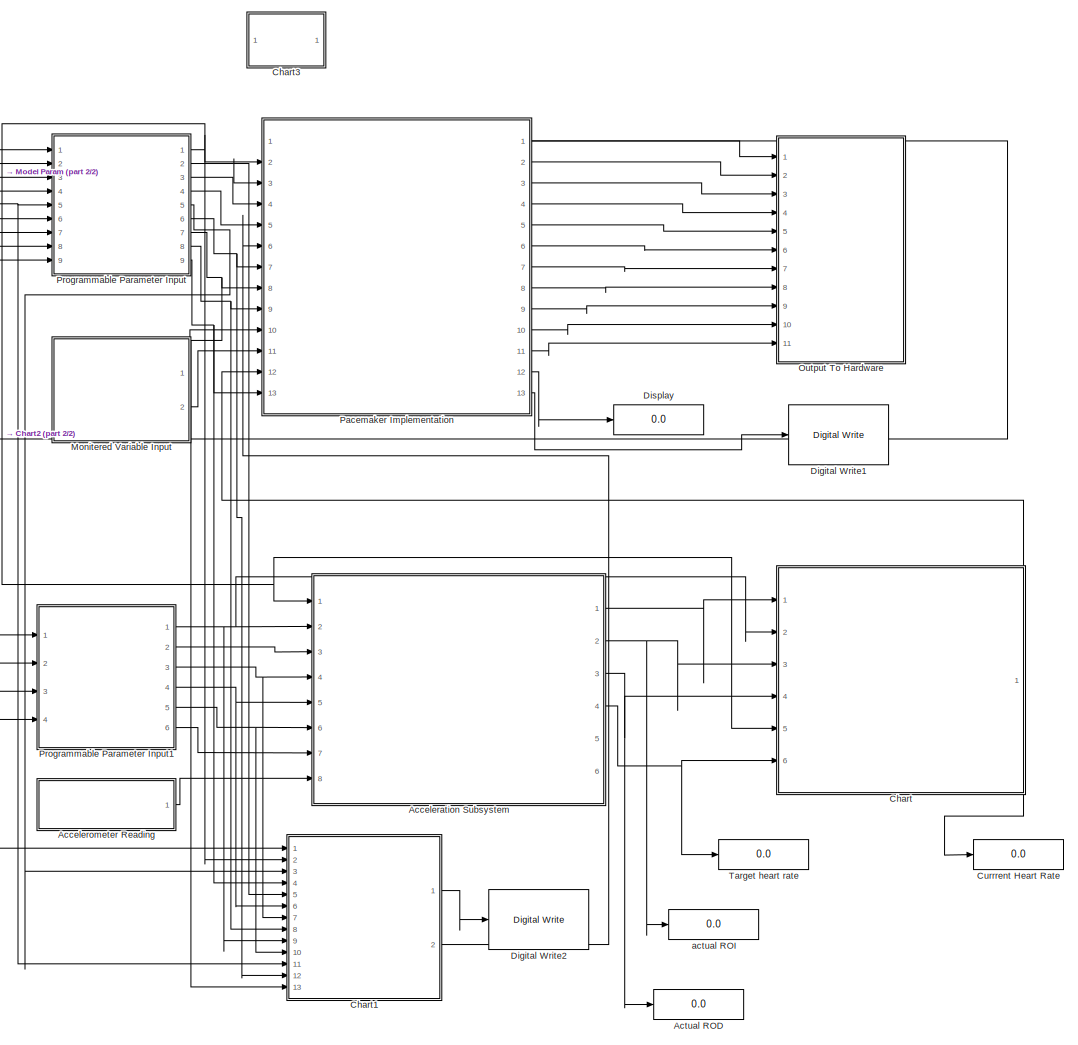
[diagram: root canvas - part 1/2, right side, full height]
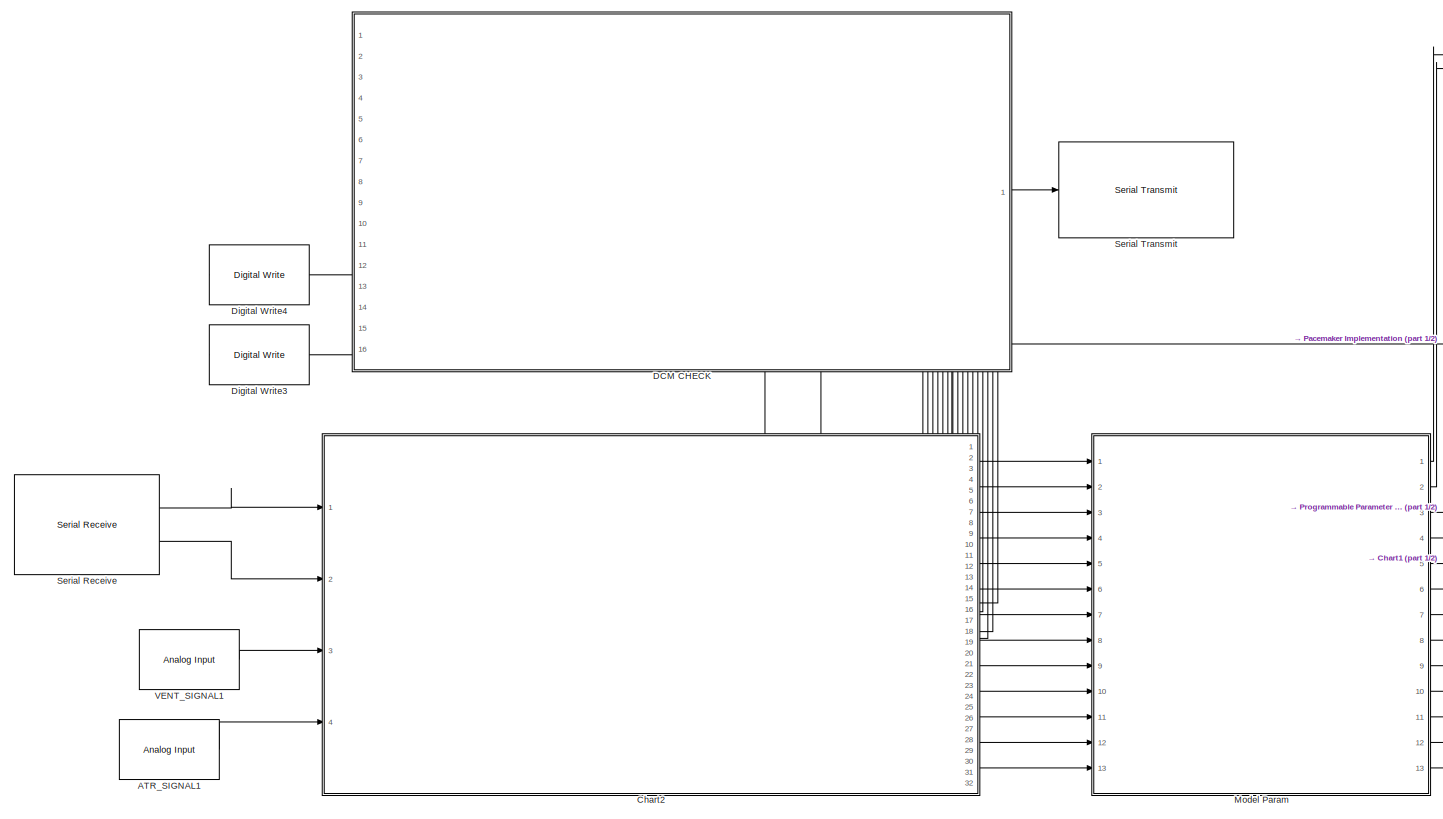
[diagram: root canvas - part 2/2, left side, full height]
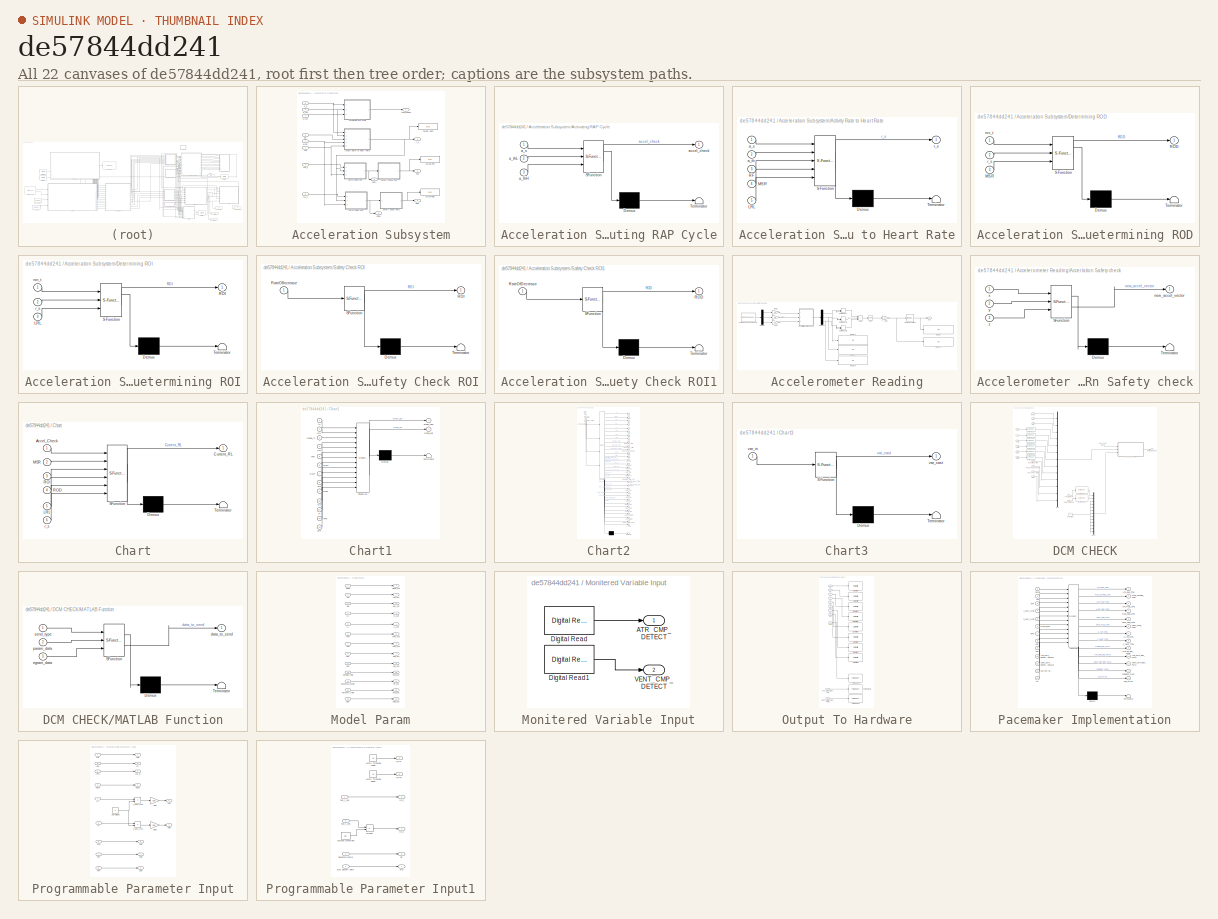
[diagram: thumbnail index - all 22 canvases of the model, root first then tree order]
MODEL slx_de57844dd241
KIND model
CONFIG AbsTol = auto
CONFIG EnableMultiTasking = on
CONFIG FixedStep = 1e-3
CONFIG MaxStep = auto
CONFIG MinStep = auto
CONFIG RelTol = 1e-3
CONFIG SampleTimeConstraint = Unconstrained
CONFIG SolverName = FixedStepDiscrete
CONFIG StartTime = 0.0
CONFIG StopTime = 50
WORKSPACE source: mxarray member
WORKSPACE DefaultDataStore = 60
BLOCK [Reference] ATR_SIGNAL1  REF=frdmk64flib/Analog Input
  Ports = [0, 1]
  SourceBlock = frdmk64flib/Analog Input
  SourceProductBaseCode = EC_FRDM_K64F
  SourceType = freedomk64f.AnalogInput
BLOCK [SubSystem] Acceleration Subsystem
  Ports = [8, 6]
  RequestExecContextInheritance = off
BLOCK [Outport] Acceleration Subsystem/Accel_Check
BLOCK [SubSystem] Acceleration Subsystem/Activating RAP Cycle
  ErrorFcn = Stateflow.Translate.translate
  PermitHierarchicalResolution = ExplicitOnly
  Ports = [3, 1]
  RequestExecContextInheritance = off
  SFBlockType = MATLAB Function
  TreatAsAtomicUnit = on
BLOCK [Demux] Acceleration Subsystem/Activating RAP Cycle/ Demux 
  Outputs = 1
  Ports = [1, 1]
BLOCK [S-Function] Acceleration Subsystem/Activating RAP Cycle/ SFunction 
  EnableBusSupport = on
  FunctionName = sf_sfun
  PortCounts = [3 2]
  Ports = [3, 2]
  SFcnIsStateOwnerBlock = off
  SFunctionDeploymentMode = off
  Tag = Stateflow S-Function 5
BLOCK [Terminator] Acceleration Subsystem/Activating RAP Cycle/ Terminator 
BLOCK [Inport] Acceleration Subsystem/Activating RAP Cycle/a_s
BLOCK [Inport] Acceleration Subsystem/Activating RAP Cycle/a_thH
  Port = 3
BLOCK [Inport] Acceleration Subsystem/Activating RAP Cycle/a_thL
  Port = 2
BLOCK [Outport] Acceleration Subsystem/Activating RAP Cycle/accel_check
BLOCK [SubSystem] Acceleration Subsystem/Activity Rate to Heart Rate
  ErrorFcn = Stateflow.Translate.translate
  PermitHierarchicalResolution = ExplicitOnly
  Ports = [5, 1]
  RequestExecContextInheritance = off
  SFBlockType = MATLAB Function
  TreatAsAtomicUnit = on
BLOCK [Demux] Acceleration Subsystem/Activity Rate to Heart Rate/ Demux 
  Outputs = 1
  Ports = [1, 1]
BLOCK [S-Function] Acceleration Subsystem/Activity Rate to Heart Rate/ SFunction 
  EnableBusSupport = on
  FunctionName = sf_sfun
  PortCounts = [5 2]
  Ports = [5, 2]
  SFcnIsStateOwnerBlock = off
  SFunctionDeploymentMode = off
  Tag = Stateflow S-Function 2
BLOCK [Terminator] Acceleration Subsystem/Activity Rate to Heart Rate/ Terminator 
BLOCK [Inport] Acceleration Subsystem/Activity Rate to Heart Rate/LRL
  Port = 5
BLOCK [Inport] Acceleration Subsystem/Activity Rate to Heart Rate/MSR
  Port = 4
BLOCK [Inport] Acceleration Subsystem/Activity Rate to Heart Rate/RF
  Port = 3
BLOCK [Inport] Acceleration Subsystem/Activity Rate to Heart Rate/a_s
BLOCK [Inport] Acceleration Subsystem/Activity Rate to Heart Rate/a_th
  Port = 2
BLOCK [Outport] Acceleration Subsystem/Activity Rate to Heart Rate/r_s
BLOCK [Display] Acceleration Subsystem/Actual ROD
  Decimation = 1
  Ports = [1]
BLOCK [SubSystem] Acceleration Subsystem/Determining ROD
  ErrorFcn = Stateflow.Translate.translate
  PermitHierarchicalResolution = ExplicitOnly
  Ports = [3, 1]
  RequestExecContextInheritance = off
  SFBlockType = MATLAB Function
  TreatAsAtomicUnit = on
BLOCK [Demux] Acceleration Subsystem/Determining ROD/ Demux 
  Outputs = 1
  Ports = [1, 1]
BLOCK [S-Function] Acceleration Subsystem/Determining ROD/ SFunction 
  EnableBusSupport = on
  FunctionName = sf_sfun
  PortCounts = [3 2]
  Ports = [3, 2]
  SFcnIsStateOwnerBlock = off
  SFunctionDeploymentMode = off
  Tag = Stateflow S-Function 4
BLOCK [Terminator] Acceleration Subsystem/Determining ROD/ Terminator 
BLOCK [Inport] Acceleration Subsystem/Determining ROD/MSR
  Port = 3
BLOCK [Outport] Acceleration Subsystem/Determining ROD/ROD
BLOCK [Inport] Acceleration Subsystem/Determining ROD/r_s
  Port = 2
BLOCK [Inport] Acceleration Subsystem/Determining ROD/rcv_t
BLOCK [SubSystem] Acceleration Subsystem/Determining ROI
  ErrorFcn = Stateflow.Translate.translate
  PermitHierarchicalResolution = ExplicitOnly
  Ports = [3, 1]
  RequestExecContextInheritance = off
  SFBlockType = MATLAB Function
  TreatAsAtomicUnit = on
BLOCK [Demux] Acceleration Subsystem/Determining ROI/ Demux 
  Outputs = 1
  Ports = [1, 1]
BLOCK [S-Function] Acceleration Subsystem/Determining ROI/ SFunction 
  EnableBusSupport = on
  FunctionName = sf_sfun
  PortCounts = [3 2]
  Ports = [3, 2]
  SFcnIsStateOwnerBlock = off
  SFunctionDeploymentMode = off
  Tag = Stateflow S-Function 1
BLOCK [Terminator] Acceleration Subsystem/Determining ROI/ Terminator 
BLOCK [Inport] Acceleration Subsystem/Determining ROI/LRL
  Port = 3
BLOCK [Outport] Acceleration Subsystem/Determining ROI/ROI
BLOCK [Inport] Acceleration Subsystem/Determining ROI/r_s
  Port = 2
BLOCK [Inport] Acceleration Subsystem/Determining ROI/rxn_t
BLOCK [Inport] Acceleration Subsystem/LRL
BLOCK [Inport] Acceleration Subsystem/MSR
  Port = 2
BLOCK [Inport] Acceleration Subsystem/RF
  Port = 6
BLOCK [Outport] Acceleration Subsystem/ROD
  Port = 3
BLOCK [Outport] Acceleration Subsystem/ROD1
  Port = 6
BLOCK [Outport] Acceleration Subsystem/ROI
  Port = 2
BLOCK [Outport] Acceleration Subsystem/ROI1
  Port = 5
BLOCK [SubSystem] Acceleration Subsystem/Safety Check ROI
  ErrorFcn = Stateflow.Translate.translate
  PermitHierarchicalResolution = ExplicitOnly
  Ports = [1, 1]
  RequestExecContextInheritance = off
  SFBlockType = MATLAB Function
  TreatAsAtomicUnit = on
BLOCK [Demux] Acceleration Subsystem/Safety Check ROI/ Demux 
  Outputs = 1
  Ports = [1, 1]
BLOCK [S-Function] Acceleration Subsystem/Safety Check ROI/ SFunction 
  EnableBusSupport = on
  FunctionName = sf_sfun
  PortCounts = [1 2]
  Ports = [1, 2]
  SFcnIsStateOwnerBlock = off
  SFunctionDeploymentMode = off
  Tag = Stateflow S-Function 8
BLOCK [Terminator] Acceleration Subsystem/Safety Check ROI/ Terminator 
BLOCK [Outport] Acceleration Subsystem/Safety Check ROI/ROI
BLOCK [Inport] Acceleration Subsystem/Safety Check ROI/RateOfIncrease
BLOCK [SubSystem] Acceleration Subsystem/Safety Check ROI1
  ErrorFcn = Stateflow.Translate.translate
  PermitHierarchicalResolution = ExplicitOnly
  Ports = [1, 1]
  RequestExecContextInheritance = off
  SFBlockType = MATLAB Function
  TreatAsAtomicUnit = on
BLOCK [Demux] Acceleration Subsystem/Safety Check ROI1/ Demux 
  Outputs = 1
  Ports = [1, 1]
BLOCK [S-Function] Acceleration Subsystem/Safety Check ROI1/ SFunction 
  EnableBusSupport = on
  FunctionName = sf_sfun
  PortCounts = [1 2]
  Ports = [1, 2]
  SFcnIsStateOwnerBlock = off
  SFunctionDeploymentMode = off
  Tag = Stateflow S-Function 7
BLOCK [Terminator] Acceleration Subsystem/Safety Check ROI1/ Terminator 
BLOCK [Outport] Acceleration Subsystem/Safety Check ROI1/ROD
BLOCK [Inport] Acceleration Subsystem/Safety Check ROI1/RateOfDecrease
BLOCK [Display] Acceleration Subsystem/Target bpm
  Decimation = 1
  Ports = [1]
BLOCK [Inport] Acceleration Subsystem/a_s
  Port = 8
BLOCK [Inport] Acceleration Subsystem/a_thH
  Port = 7
BLOCK [Inport] Acceleration Subsystem/a_thL
  Port = 3
BLOCK [Display] Acceleration Subsystem/actual ROI
  Decimation = 1
  Ports = [1]
BLOCK [Outport] Acceleration Subsystem/r_s
  Port = 4
BLOCK [Inport] Acceleration Subsystem/rcv_t
  Port = 5
BLOCK [Inport] Acceleration Subsystem/rxn_t
  Port = 4
BLOCK [SubSystem] Accelerometer Reading
  Ports = [0, 1]
  RequestExecContextInheritance = off
BLOCK [SubSystem] Accelerometer Reading/Accerlation Safety check
  ErrorFcn = Stateflow.Translate.translate
  PermitHierarchicalResolution = ExplicitOnly
  Ports = [3, 1]
  RequestExecContextInheritance = off
  SFBlockType = MATLAB Function
  TreatAsAtomicUnit = on
BLOCK [Demux] Accelerometer Reading/Accerlation Safety check/ Demux 
  Outputs = 1
  Ports = [1, 1]
BLOCK [S-Function] Accelerometer Reading/Accerlation Safety check/ SFunction 
  EnableBusSupport = on
  FunctionName = sf_sfun
  PortCounts = [3 2]
  Ports = [3, 2]
  SFcnIsStateOwnerBlock = off
  SFunctionDeploymentMode = off
  Tag = Stateflow S-Function 12
BLOCK [Terminator] Accelerometer Reading/Accerlation Safety check/ Terminator 
BLOCK [Outport] Accelerometer Reading/Accerlation Safety check/new_accel_vector
BLOCK [Inport] Accelerometer Reading/Accerlation Safety check/x
BLOCK [Inport] Accelerometer Reading/Accerlation Safety check/y
  Port = 2
BLOCK [Inport] Accelerometer Reading/Accerlation Safety check/z
  Port = 3
BLOCK [Sum] Accelerometer Reading/Add
  IconShape = rectangular
  Inputs = +++
  Ports = [3, 1]
BLOCK [Demux] Accelerometer Reading/Demux
  Outputs = 3
  Ports = [1, 3]
BLOCK [Demux] Accelerometer Reading/Demux1
  Outputs = 3
  Ports = [1, 3]
BLOCK [Display] Accelerometer Reading/Display
  Decimation = 1
  Ports = [1]
BLOCK [Display] Accelerometer Reading/Display2
  Decimation = 1
  Ports = [1]
BLOCK [Display] Accelerometer Reading/Display3
  Decimation = 1
  Ports = [1]
BLOCK [Display] Accelerometer Reading/Display4
  Decimation = 1
  Ports = [1]
BLOCK [Display] Accelerometer Reading/Display5
  Decimation = 1
  Ports = [1]
BLOCK [DotProduct] Accelerometer Reading/Dot Product
  OutDataTypeStr = Inherit: Inherit via internal rule
BLOCK [DotProduct] Accelerometer Reading/Dot Product1
  OutDataTypeStr = Inherit: Inherit via internal rule
BLOCK [DotProduct] Accelerometer Reading/Dot Product2
  OutDataTypeStr = Inherit: Inherit via internal rule
BLOCK [Reference] Accelerometer Reading/FXOS8700 6-Axes Sensor  REF=frdmk64flib/FXOS8700 6-Axes Sensor
  Ports = [0, 1]
  SourceBlock = frdmk64flib/FXOS8700 6-Axes Sensor
  SourceProductBaseCode = EC_FRDM_K64F
  SourceType = freedomk64f.fxos8700
BLOCK [Gain] Accelerometer Reading/Gain
  Gain = 5
BLOCK [Gain] Accelerometer Reading/Gain1
  Gain = 10
BLOCK [Gain] Accelerometer Reading/Gain2
  Gain = 10
BLOCK [Gain] Accelerometer Reading/Gain3
BLOCK [Reference] Accelerometer Reading/Moving Average  REF=dspstat3/Moving
Average
  Ports = [1, 1]
  SourceBlock = dspstat3/Moving\nAverage
  SourceProductBaseCode = DS
  SourceType = dsp.simulink.MovingAverage
BLOCK [Sqrt] Accelerometer Reading/Sqrt
BLOCK [Outport] Accelerometer Reading/a_s
BLOCK [Display] Actual ROD
  Decimation = 1
  Ports = [1]
BLOCK [SubSystem] Chart
  ErrorFcn = Stateflow.Translate.translate
  PermitHierarchicalResolution = ExplicitOnly
  PortSchema = {"entries":[{"content":{"sides":[{"content":{"connectorIds":["In5","In2","In1","In3","In4","In6"]},"type":"ConnectorPlacement.EquallySpacedRectSide","uuid":"e2faaf11-533e-4519-93e0-9386f0696ab0"},{"content":{"connectorIds":["Out1"],"side":"RIGHT"},"type":"ConnectorPlacement.EquallySpacedRectSide","uuid":"3d822896-3a5e-473f-9176-095876908580"},{"content":{"connectorIds":[],"side":"TOP"},"type":"Con...<+270ch>
  Ports = [6, 1]
  RequestExecContextInheritance = off
  SFBlockType = Chart
  TreatAsAtomicUnit = on
BLOCK [Demux] Chart/ Demux 
  Outputs = 1
  Ports = [1, 1]
BLOCK [S-Function] Chart/ SFunction 
  EnableBusSupport = on
  FunctionName = sf_sfun
  PortCounts = [6 2]
  Ports = [6, 2]
  SFcnIsStateOwnerBlock = off
  SFunctionDeploymentMode = off
  Tag = Stateflow S-Function 6
BLOCK [Terminator] Chart/ Terminator 
BLOCK [Inport] Chart/Accel_Check
BLOCK [Outport] Chart/Current_RL
BLOCK [Inport] Chart/LRL
  Port = 5
BLOCK [Inport] Chart/MSR
  Port = 2
BLOCK [Inport] Chart/ROD
  Port = 4
BLOCK [Inport] Chart/ROI
  Port = 3
BLOCK [Inport] Chart/r_s
  Port = 6
BLOCK [SubSystem] Chart1
  ErrorFcn = Stateflow.Translate.translate
  PermitHierarchicalResolution = ExplicitOnly
  PortSchema = {"entries":[{"content":{"sides":[{"content":{"connectorIds":["In2","In4","In1","In5","In7","In6","In8","In10","In9","In11","In13","In3","In12"]},"type":"ConnectorPlacement.EquallySpacedRectSide","uuid":"456a7d9e-f2dc-4248-8632-54977d3d0e8d"},{"content":{"connectorIds":["Out1","Out2"],"side":"RIGHT"},"type":"ConnectorPlacement.EquallySpacedRectSide","uuid":"93618940-8d2c-4873-bbdd-898375b2771e"},{"...<+323ch>
  Ports = [13, 2]
  RequestExecContextInheritance = off
  SFBlockType = Chart
  TreatAsAtomicUnit = on
BLOCK [Demux] Chart1/ Demux 
  Outputs = 1
  Ports = [1, 1]
BLOCK [S-Function] Chart1/ SFunction 
  EnableBusSupport = on
  FunctionName = sf_sfun
  PortCounts = [13 3]
  Ports = [13, 3]
  SFcnIsStateOwnerBlock = off
  SFunctionDeploymentMode = off
  Tag = Stateflow S-Function 9
BLOCK [Terminator] Chart1/ Terminator 
BLOCK [Inport] Chart1/AA
BLOCK [Inport] Chart1/APW
  Port = 5
BLOCK [Inport] Chart1/ARP
  Port = 8
BLOCK [Inport] Chart1/LRL
  Port = 2
BLOCK [Inport] Chart1/MSR
  Port = 9
BLOCK [Inport] Chart1/RF
  Port = 10
BLOCK [Inport] Chart1/RecT
  Port = 6
BLOCK [Inport] Chart1/RxnT
  Port = 7
BLOCK [Inport] Chart1/URL
  Port = 4
BLOCK [Inport] Chart1/VA
  Port = 11
BLOCK [Inport] Chart1/VPW
  Port = 12
BLOCK [Inport] Chart1/VRP
  Port = 13
BLOCK [Outport] Chart1/green_LED
BLOCK [Inport] Chart1/mode_in
  Port = 3
BLOCK [Outport] Chart1/mode_out
  Port = 2
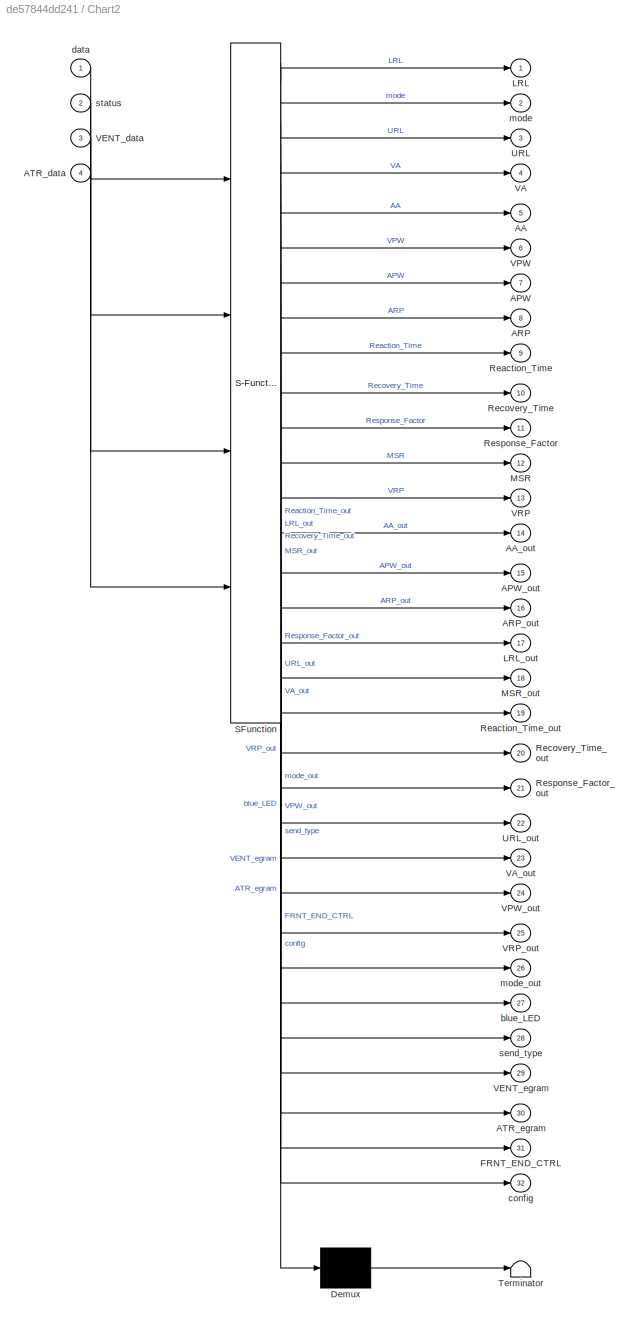
BLOCK [SubSystem] Chart2
  ErrorFcn = Stateflow.Translate.translate
  PermitHierarchicalResolution = ExplicitOnly
  PortSchema = {"entries":[{"content":{"sides":[{"content":{"connectorIds":["In1","In2","In3","In4"]},"type":"ConnectorPlacement.EquallySpacedRectSide","uuid":"e0d71676-4635-4cc5-940f-d91659ea50ca"},{"content":{"connectorIds":["Out2","Out1","Out3","Out4","Out5","Out6","Out7","Out13","Out8","Out9","Out10","Out11","Out12"],"side":"RIGHT"},"type":"ConnectorPlacement.EquallySpacedRectSide","uuid":"0805dafd-7d20-457a...<+641ch>
  Ports = [4, 32]
  RequestExecContextInheritance = off
  SFBlockType = Chart
  TreatAsAtomicUnit = on
BLOCK [Demux] Chart2/ Demux 
  Outputs = 1
  Ports = [1, 1]
BLOCK [S-Function] Chart2/ SFunction 
  EnableBusSupport = on
  FunctionName = sf_sfun
  PortCounts = [4 33]
  Ports = [4, 33]
  SFcnIsStateOwnerBlock = off
  SFunctionDeploymentMode = off
  Tag = Stateflow S-Function 10
BLOCK [Terminator] Chart2/ Terminator 
BLOCK [Outport] Chart2/AA
  Port = 5
BLOCK [Outport] Chart2/AA_out
  Port = 14
BLOCK [Outport] Chart2/APW
  Port = 7
BLOCK [Outport] Chart2/APW_out
  Port = 15
BLOCK [Outport] Chart2/ARP
  Port = 8
BLOCK [Outport] Chart2/ARP_out
  Port = 16
BLOCK [Inport] Chart2/ATR_data
  Port = 4
BLOCK [Outport] Chart2/ATR_egram
  Port = 30
BLOCK [Outport] Chart2/FRNT_END_CTRL
  Port = 31
BLOCK [Outport] Chart2/LRL
BLOCK [Outport] Chart2/LRL_out
  Port = 17
BLOCK [Outport] Chart2/MSR
  Port = 12
BLOCK [Outport] Chart2/MSR_out
  Port = 18
BLOCK [Outport] Chart2/Reaction_Time
  Port = 9
BLOCK [Outport] Chart2/Reaction_Time_out
  Port = 19
BLOCK [Outport] Chart2/Recovery_Time
  Port = 10
BLOCK [Outport] Chart2/Recovery_Time_out
  Port = 20
BLOCK [Outport] Chart2/Response_Factor
  Port = 11
BLOCK [Outport] Chart2/Response_Factor_out
  Port = 21
BLOCK [Outport] Chart2/URL
  Port = 3
BLOCK [Outport] Chart2/URL_out
  Port = 22
BLOCK [Outport] Chart2/VA
  Port = 4
BLOCK [Outport] Chart2/VA_out
  Port = 23
BLOCK [Inport] Chart2/VENT_data
  Port = 3
BLOCK [Outport] Chart2/VENT_egram
  Port = 29
BLOCK [Outport] Chart2/VPW
  Port = 6
BLOCK [Outport] Chart2/VPW_out
  Port = 24
BLOCK [Outport] Chart2/VRP
  Port = 13
BLOCK [Outport] Chart2/VRP_out
  Port = 25
BLOCK [Outport] Chart2/blue_LED
  Port = 27
BLOCK [Outport] Chart2/config
  Port = 32
BLOCK [Inport] Chart2/data
BLOCK [Outport] Chart2/mode
  Port = 2
BLOCK [Outport] Chart2/mode_out
  Port = 26
BLOCK [Outport] Chart2/send_type
  Port = 28
BLOCK [Inport] Chart2/status
  Port = 2
BLOCK [SubSystem] Chart3
  Commented = on
  ErrorFcn = Stateflow.Translate.translate
  PermitHierarchicalResolution = ExplicitOnly
  Ports = [1, 1]
  RequestExecContextInheritance = off
  SFBlockType = Chart
  TreatAsAtomicUnit = on
BLOCK [Demux] Chart3/ Demux 
  Outputs = 1
  Ports = [1, 1]
BLOCK [S-Function] Chart3/ SFunction 
  EnableBusSupport = on
  FunctionName = sf_sfun
  PortCounts = [1 2]
  Ports = [1, 2]
  SFcnIsStateOwnerBlock = off
  SFunctionDeploymentMode = off
  Tag = Stateflow S-Function 11
BLOCK [Terminator] Chart3/ Terminator 
BLOCK [Outport] Chart3/var_cast
BLOCK [Inport] Chart3/var_in
BLOCK [Display] Currrent Heart Rate
  Decimation = 1
  Ports = [1]
BLOCK [SubSystem] DCM CHECK
  PortSchema = {"entries":[{"content":{"sides":[{"content":{"connectorIds":[]},"type":"ConnectorPlacement.EquallySpacedRectSide","uuid":"5070fca3-03db-4702-bf74-10cd169506b7"},{"content":{"connectorIds":["Out1"],"side":"RIGHT"},"type":"ConnectorPlacement.EquallySpacedRectSide","uuid":"a99172cf-9b5d-4dae-9e4a-5601bc613afa"},{"content":{"connectorIds":[],"side":"TOP"},"type":"ConnectorPlacement.EquallySpacedRectSi...<+481ch>
  Ports = [16, 1]
  RequestExecContextInheritance = off
BLOCK [Inport] DCM CHECK/AA
  OutDataTypeStr = single
  Port = 8
BLOCK [Inport] DCM CHECK/APW
  OutDataTypeStr = single
  Port = 10
BLOCK [Inport] DCM CHECK/ARP
  OutDataTypeStr = uint16
  Port = 12
BLOCK [Inport] DCM CHECK/ATR_EGRAM
  OutDataTypeStr = double
  Port = 3
BLOCK [Reference] DCM CHECK/Byte Pack  REF=etargetslib/Byte Pack
  Ports = [1, 1]
  SourceBlock = etargetslib/Byte Pack
  SourceProductBaseCode = ME
  SourceType = Byte pack
BLOCK [Reference] DCM CHECK/Byte Pack1  REF=etargetslib/Byte Pack
  Ports = [1, 1]
  SourceBlock = etargetslib/Byte Pack
  SourceProductBaseCode = ME
  SourceType = Byte pack
BLOCK [Reference] DCM CHECK/Byte Pack2  REF=etargetslib/Byte Pack
  Ports = [1, 1]
  SourceBlock = etargetslib/Byte Pack
  SourceProductBaseCode = ME
  SourceType = Byte pack
BLOCK [Reference] DCM CHECK/Byte Pack3  REF=etargetslib/Byte Pack
  Ports = [1, 1]
  SourceBlock = etargetslib/Byte Pack
  SourceProductBaseCode = ME
  SourceType = Byte pack
BLOCK [Reference] DCM CHECK/Byte Pack4  REF=etargetslib/Byte Pack
  Ports = [1, 1]
  SourceBlock = etargetslib/Byte Pack
  SourceProductBaseCode = ME
  SourceType = Byte pack
BLOCK [Reference] DCM CHECK/Byte Pack5  REF=etargetslib/Byte Pack
  Ports = [1, 1]
  SourceBlock = etargetslib/Byte Pack
  SourceProductBaseCode = ME
  SourceType = Byte pack
BLOCK [Reference] DCM CHECK/Byte Pack8  REF=etargetslib/Byte Pack
  Ports = [1, 1]
  SourceBlock = etargetslib/Byte Pack
  SourceProductBaseCode = ME
  SourceType = Byte pack
BLOCK [Reference] DCM CHECK/Byte Pack9  REF=etargetslib/Byte Pack
  Ports = [1, 1]
  SourceBlock = etargetslib/Byte Pack
  SourceProductBaseCode = ME
  SourceType = Byte pack
BLOCK [Constant] DCM CHECK/Constant
  OutDataTypeStr = uint8
  Value = 0
BLOCK [Inport] DCM CHECK/LRL
  OutDataTypeStr = uint8
  Port = 5
BLOCK [SubSystem] DCM CHECK/MATLAB Function
  ErrorFcn = Stateflow.Translate.translate
  PermitHierarchicalResolution = ExplicitOnly
  Ports = [3, 1]
  RequestExecContextInheritance = off
  SFBlockType = MATLAB Function
  TreatAsAtomicUnit = on
BLOCK [Demux] DCM CHECK/MATLAB Function/ Demux 
  Outputs = 1
  Ports = [1, 1]
BLOCK [S-Function] DCM CHECK/MATLAB Function/ SFunction 
  EnableBusSupport = on
  FunctionName = sf_sfun
  PortCounts = [3 2]
  Ports = [3, 2]
  SFcnIsStateOwnerBlock = off
  SFunctionDeploymentMode = off
  Tag = Stateflow S-Function 13
BLOCK [Terminator] DCM CHECK/MATLAB Function/ Terminator 
BLOCK [Outport] DCM CHECK/MATLAB Function/data_to_send
BLOCK [Inport] DCM CHECK/MATLAB Function/egram_data
  Port = 3
BLOCK [Inport] DCM CHECK/MATLAB Function/param_data
  Port = 2
BLOCK [Inport] DCM CHECK/MATLAB Function/send_type
BLOCK [Inport] DCM CHECK/MSR
  OutDataTypeStr = uint8
  Port = 16
BLOCK [Mux] DCM CHECK/Mux
  DisplayOption = bar
  Inputs = 13
  Ports = [13, 1]
BLOCK [Mux] DCM CHECK/Mux1
  DisplayOption = bar
  Inputs = 13
  Ports = [13, 1]
BLOCK [Inport] DCM CHECK/Reaction_Time
  OutDataTypeStr = uint8
  Port = 13
BLOCK [Inport] DCM CHECK/Recovery_Time
  OutDataTypeStr = uint8
  Port = 15
BLOCK [Inport] DCM CHECK/Response_Factor
  OutDataTypeStr = uint8
  Port = 14
BLOCK [Inport] DCM CHECK/URL
  OutDataTypeStr = uint8
  Port = 6
BLOCK [Inport] DCM CHECK/VA
  OutDataTypeStr = single
  Port = 7
BLOCK [Inport] DCM CHECK/VENT_EGRAM
  OutDataTypeStr = double
  Port = 2
BLOCK [Inport] DCM CHECK/VPW
  OutDataTypeStr = single
  Port = 9
BLOCK [Inport] DCM CHECK/VRP
  OutDataTypeStr = uint16
  Port = 11
BLOCK [Outport] DCM CHECK/data_to_send
BLOCK [Inport] DCM CHECK/mode
  OutDataTypeStr = uint8
  Port = 4
BLOCK [Inport] DCM CHECK/send_type
BLOCK [Reference] Digital Write1  REF=frdmk64flib/Digital Write
  Ports = [1]
  SourceBlock = frdmk64flib/Digital Write
  SourceProductBaseCode = EC_FRDM_K64F
  SourceType = freedomk64f.DigitalWrite
BLOCK [Reference] Digital Write2  REF=frdmk64flib/Digital Write
  Ports = [1]
  SourceBlock = frdmk64flib/Digital Write
  SourceProductBaseCode = EC_FRDM_K64F
  SourceType = freedomk64f.DigitalWrite
BLOCK [Reference] Digital Write3  REF=frdmk64flib/Digital Write
  Ports = [1]
  SourceBlock = frdmk64flib/Digital Write
  SourceProductBaseCode = EC_FRDM_K64F
  SourceType = freedomk64f.DigitalWrite
BLOCK [Reference] Digital Write4  REF=frdmk64flib/Digital Write
  Ports = [1]
  SourceBlock = frdmk64flib/Digital Write
  SourceProductBaseCode = EC_FRDM_K64F
  SourceType = freedomk64f.DigitalWrite
BLOCK [Display] Display
  Decimation = 1
  Ports = [1]
BLOCK [SubSystem] Model Param
  Ports = [13, 13]
  RequestExecContextInheritance = off
BLOCK [Inport] Model Param/AA
  Port = 5
BLOCK [Outport] Model Param/AA_out
  Port = 4
BLOCK [Inport] Model Param/APW
  Port = 7
BLOCK [Outport] Model Param/APW_out
  Port = 2
BLOCK [Inport] Model Param/ARP
  Port = 9
BLOCK [Outport] Model Param/ARP_out
  Port = 8
BLOCK [Inport] Model Param/LRL
  Port = 2
BLOCK [Outport] Model Param/LRL_out
BLOCK [Inport] Model Param/MSR
  Port = 13
BLOCK [Outport] Model Param/MSR_out
  Port = 13
BLOCK [Outport] Model Param/RF_out
  Port = 12
BLOCK [Outport] Model Param/Rcvt_out
  Port = 11
BLOCK [Inport] Model Param/Reaction_Time
  Port = 10
BLOCK [Inport] Model Param/Recovery_Time
  Port = 11
BLOCK [Inport] Model Param/Response_Factor
  Port = 12
BLOCK [Outport] Model Param/Rxnt_out
  Port = 10
BLOCK [Inport] Model Param/URL
  Port = 3
BLOCK [Outport] Model Param/URL_out
  Port = 9
BLOCK [Inport] Model Param/VA
  Port = 4
BLOCK [Outport] Model Param/VA_out
  Port = 5
BLOCK [Inport] Model Param/VPW
  Port = 6
BLOCK [Outport] Model Param/VPW_out
  Port = 6
BLOCK [Inport] Model Param/VRP
  Port = 8
BLOCK [Outport] Model Param/VRP_out
  Port = 7
BLOCK [Inport] Model Param/mode
BLOCK [Outport] Model Param/mode_out
  Port = 3
BLOCK [SubSystem] Monitered Variable Input
  Ports = [0, 2]
  RequestExecContextInheritance = off
BLOCK [Outport] Monitered Variable Input/ATR_CMP_DETECT
  OutDataTypeStr = boolean
BLOCK [Reference] Monitered Variable Input/Digital Read  REF=frdmk64flib/Digital Read
  Ports = [0, 1]
  SourceBlock = frdmk64flib/Digital Read
  SourceProductBaseCode = EC_FRDM_K64F
  SourceType = freedomk64f.DigitalRead
BLOCK [Reference] Monitered Variable Input/Digital Read1  REF=frdmk64flib/Digital Read
  Ports = [0, 1]
  SourceBlock = frdmk64flib/Digital Read
  SourceProductBaseCode = EC_FRDM_K64F
  SourceType = freedomk64f.DigitalRead
BLOCK [Outport] Monitered Variable Input/VENT_CMP_DETECT
  OutDataTypeStr = boolean
  Port = 2
BLOCK [SubSystem] Output To Hardware
  Ports = [11]
  RequestExecContextInheritance = off
BLOCK [Inport] Output To Hardware/ATR_CMP_REF_PWM
  Port = 10
BLOCK [Reference] Output To Hardware/Digital Write  REF=frdmk64flib/Digital Write
  Ports = [1]
  SourceBlock = frdmk64flib/Digital Write
  SourceProductBaseCode = EC_FRDM_K64F
  SourceType = freedomk64f.DigitalWrite
BLOCK [Reference] Output To Hardware/Digital Write1  REF=frdmk64flib/Digital Write
  Ports = [1]
  SourceBlock = frdmk64flib/Digital Write
  SourceProductBaseCode = EC_FRDM_K64F
  SourceType = freedomk64f.DigitalWrite
BLOCK [Reference] Output To Hardware/Digital Write2  REF=frdmk64flib/Digital Write
  Ports = [1]
  SourceBlock = frdmk64flib/Digital Write
  SourceProductBaseCode = EC_FRDM_K64F
  SourceType = freedomk64f.DigitalWrite
BLOCK [Reference] Output To Hardware/Digital Write4  REF=frdmk64flib/Digital Write
  Ports = [1]
  SourceBlock = frdmk64flib/Digital Write
  SourceProductBaseCode = EC_FRDM_K64F
  SourceType = freedomk64f.DigitalWrite
BLOCK [Reference] Output To Hardware/Digital Write5  REF=frdmk64flib/Digital Write
  Ports = [1]
  SourceBlock = frdmk64flib/Digital Write
  SourceProductBaseCode = EC_FRDM_K64F
  SourceType = freedomk64f.DigitalWrite
BLOCK [Reference] Output To Hardware/Digital Write6  REF=frdmk64flib/Digital Write
  Ports = [1]
  SourceBlock = frdmk64flib/Digital Write
  SourceProductBaseCode = EC_FRDM_K64F
  SourceType = freedomk64f.DigitalWrite
BLOCK [Reference] Output To Hardware/Digital Write7  REF=frdmk64flib/Digital Write
  Ports = [1]
  SourceBlock = frdmk64flib/Digital Write
  SourceProductBaseCode = EC_FRDM_K64F
  SourceType = freedomk64f.DigitalWrite
BLOCK [Reference] Output To Hardware/Digital Write8  REF=frdmk64flib/Digital Write
  Ports = [1]
  SourceBlock = frdmk64flib/Digital Write
  SourceProductBaseCode = EC_FRDM_K64F
  SourceType = freedomk64f.DigitalWrite
BLOCK [Inport] Output To Hardware/In1
BLOCK [Inport] Output To Hardware/In10
  Port = 9
BLOCK [Inport] Output To Hardware/In2
  Port = 2
BLOCK [Inport] Output To Hardware/In3
  Port = 3
BLOCK [Inport] Output To Hardware/In4
  Port = 4
BLOCK [Inport] Output To Hardware/In5
  Port = 5
BLOCK [Inport] Output To Hardware/In6
  Port = 6
BLOCK [Inport] Output To Hardware/In7
  Port = 7
BLOCK [Inport] Output To Hardware/In8
  Port = 8
BLOCK [Reference] Output To Hardware/PWM Output1  REF=frdmk64flib/PWM Output
  Ports = [1]
  SourceBlock = frdmk64flib/PWM Output
  SourceProductBaseCode = EC_FRDM_K64F
  SourceType = freedomk64f.PWMOutput
BLOCK [Reference] Output To Hardware/PWM Output2  REF=frdmk64flib/PWM Output
  Ports = [1]
  SourceBlock = frdmk64flib/PWM Output
  SourceProductBaseCode = EC_FRDM_K64F
  SourceType = freedomk64f.PWMOutput
BLOCK [Reference] Output To Hardware/PWM Output3  REF=frdmk64flib/PWM Output
  Ports = [1]
  SourceBlock = frdmk64flib/PWM Output
  SourceProductBaseCode = EC_FRDM_K64F
  SourceType = freedomk64f.PWMOutput
BLOCK [Inport] Output To Hardware/VENT_CMP_REF_PWM
  Port = 11
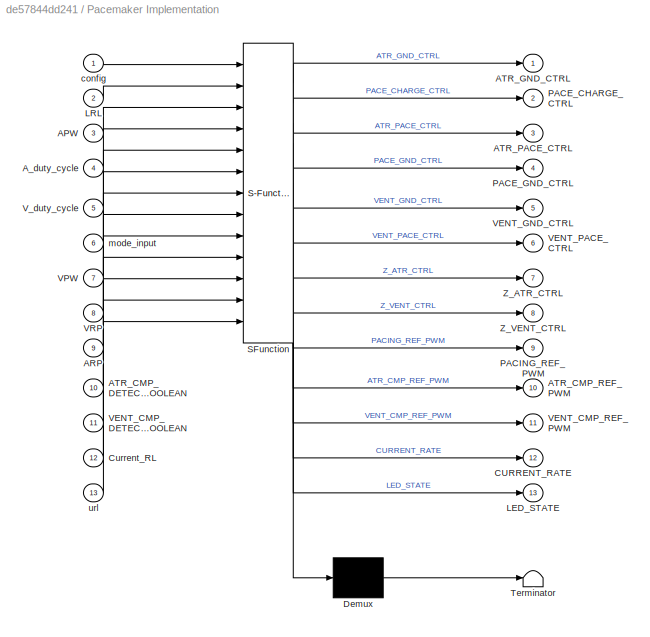
BLOCK [SubSystem] Pacemaker Implementation
  ErrorFcn = Stateflow.Translate.translate
  PermitHierarchicalResolution = ExplicitOnly
  PortSchema = {"entries":[{"content":{"sides":[{"content":{"connectorIds":["In2","In3","In4","In5","In6","In7","In8","In9","In13","In10","In11","In12"]},"type":"ConnectorPlacement.EquallySpacedRectSide","uuid":"2c436aae-0e07-4bda-8b45-2f1ae7c6679d"},{"content":{"connectorIds":["Out1","Out2","Out3","Out4","Out5","Out6","Out7","Out8","Out9","Out10","Out11","Out12","Out13"],"side":"RIGHT"},"type":"ConnectorPlaceme...<+403ch>
  Ports = [13, 13]
  RequestExecContextInheritance = off
  SFBlockType = Chart
BLOCK [Demux] Pacemaker Implementation/ Demux 
  Outputs = 1
  Ports = [1, 1]
BLOCK [S-Function] Pacemaker Implementation/ SFunction 
  EnableBusSupport = on
  FunctionName = sf_sfun
  PortCounts = [13 14]
  Ports = [13, 14]
  SFcnIsStateOwnerBlock = off
  SFunctionDeploymentMode = off
  Tag = Stateflow S-Function 3
BLOCK [Terminator] Pacemaker Implementation/ Terminator 
BLOCK [Inport] Pacemaker Implementation/APW
  Port = 3
BLOCK [Inport] Pacemaker Implementation/ARP
  Port = 9
BLOCK [Inport] Pacemaker Implementation/ATR_CMP_DETECT_BOOLEAN
  Port = 10
BLOCK [Outport] Pacemaker Implementation/ATR_CMP_REF_PWM
  Port = 10
BLOCK [Outport] Pacemaker Implementation/ATR_GND_CTRL
BLOCK [Outport] Pacemaker Implementation/ATR_PACE_CTRL
  Port = 3
BLOCK [Inport] Pacemaker Implementation/A_duty_cycle
  Port = 4
BLOCK [Outport] Pacemaker Implementation/CURRENT_RATE
  Port = 12
BLOCK [Inport] Pacemaker Implementation/Current_RL
  Port = 12
BLOCK [Outport] Pacemaker Implementation/LED_STATE
  Port = 13
BLOCK [Inport] Pacemaker Implementation/LRL
  Port = 2
BLOCK [Outport] Pacemaker Implementation/PACE_CHARGE_CTRL
  Port = 2
BLOCK [Outport] Pacemaker Implementation/PACE_GND_CTRL
  Port = 4
BLOCK [Outport] Pacemaker Implementation/PACING_REF_PWM
  Port = 9
BLOCK [Inport] Pacemaker Implementation/VENT_CMP_DETECT_BOOLEAN
  Port = 11
BLOCK [Outport] Pacemaker Implementation/VENT_CMP_REF_PWM
  Port = 11
BLOCK [Outport] Pacemaker Implementation/VENT_GND_CTRL
  Port = 5
BLOCK [Outport] Pacemaker Implementation/VENT_PACE_CTRL
  Port = 6
BLOCK [Inport] Pacemaker Implementation/VPW
  Port = 7
BLOCK [Inport] Pacemaker Implementation/VRP
  Port = 8
BLOCK [Inport] Pacemaker Implementation/V_duty_cycle
  Port = 5
BLOCK [Outport] Pacemaker Implementation/Z_ATR_CTRL
  Port = 7
BLOCK [Outport] Pacemaker Implementation/Z_VENT_CTRL
  Port = 8
BLOCK [Inport] Pacemaker Implementation/config
BLOCK [Inport] Pacemaker Implementation/mode_input
  Port = 6
BLOCK [Inport] Pacemaker Implementation/url
  Port = 13
BLOCK [SubSystem] Programmable Parameter Input
  Ports = [9, 9]
  RequestExecContextInheritance = off
BLOCK [Inport] Programmable Parameter Input/AA
  OutDataTypeStr = single
  Port = 4
BLOCK [Inport] Programmable Parameter Input/APW
  OutDataTypeStr = single
  Port = 2
BLOCK [Inport] Programmable Parameter Input/ARP
  OutDataTypeStr = uint16
  Port = 8
BLOCK [Product] Programmable Parameter Input/A_duty_cycle
  Inputs = */
  Ports = [2, 1]
BLOCK [Gain] Programmable Parameter Input/Gain
  Gain = 100
BLOCK [Gain] Programmable Parameter Input/Gain1
  Gain = 100
BLOCK [Inport] Programmable Parameter Input/LRL
  OutDataTypeStr = uint8
BLOCK [Outport] Programmable Parameter Input/LRL_in
  Port = 2
BLOCK [Constant] Programmable Parameter Input/Max Voltage
  OutDataTypeStr = double
  Value = 5
BLOCK [Inport] Programmable Parameter Input/Mode
  OutDataTypeStr = uint8
  Port = 3
BLOCK [Outport] Programmable Parameter Input/Out1
BLOCK [Outport] Programmable Parameter Input/Out3
  Port = 3
BLOCK [Outport] Programmable Parameter Input/Out5
  Port = 6
BLOCK [Outport] Programmable Parameter Input/Out6
  Port = 7
BLOCK [Outport] Programmable Parameter Input/Out7
  Port = 8
BLOCK [Outport] Programmable Parameter Input/Out8
  Port = 4
BLOCK [Inport] Programmable Parameter Input/URL
  OutDataTypeStr = uint8
  Port = 9
BLOCK [Inport] Programmable Parameter Input/VA
  OutDataTypeStr = single
  Port = 5
BLOCK [Inport] Programmable Parameter Input/VPW
  OutDataTypeStr = single
  Port = 6
BLOCK [Inport] Programmable Parameter Input/VRP
  OutDataTypeStr = uint16
  Port = 7
BLOCK [Product] Programmable Parameter Input/V_duty_cycle
  Inputs = */
  Ports = [2, 1]
BLOCK [Outport] Programmable Parameter Input/mode
  OutDataTypeStr = uint8
  Port = 5
BLOCK [Outport] Programmable Parameter Input/url
  Port = 9
BLOCK [SubSystem] Programmable Parameter Input1
  Ports = [4, 6]
  RequestExecContextInheritance = off
BLOCK [Constant] Programmable Parameter Input1/Activty Threshold Lower
  OutDataTypeStr = double
  Value = 10
BLOCK [Constant] Programmable Parameter Input1/Activty Threshold Upper
  OutDataTypeStr = double
  Value = 34
BLOCK [Inport] Programmable Parameter Input1/Max Sensory Rate
  Port = 4
BLOCK [Product] Programmable Parameter Input1/Product
  Ports = [2, 1]
BLOCK [Outport] Programmable Parameter Input1/RF
  Port = 5
BLOCK [Inport] Programmable Parameter Input1/Rcv_t_min
  Port = 2
BLOCK [Inport] Programmable Parameter Input1/Response Factor
  Port = 3
BLOCK [Inport] Programmable Parameter Input1/Rxn_t_sec
BLOCK [Outport] Programmable Parameter Input1/a_thL
  Port = 2
BLOCK [Outport] Programmable Parameter Input1/a_thU
  Port = 6
BLOCK [Outport] Programmable Parameter Input1/msr
BLOCK [Outport] Programmable Parameter Input1/rcv_t
  Port = 4
BLOCK [Outport] Programmable Parameter Input1/rxn_t
  Port = 3
BLOCK [Constant] Programmable Parameter Input1/seconds conversion 
  OutDataTypeStr = double
  Value = 60
BLOCK [Reference] Serial Receive  REF=frdmk64flib/Serial Receive
  Ports = [0, 2]
  SourceBlock = frdmk64flib/Serial Receive
  SourceProductBaseCode = EC_FRDM_K64F
  SourceType = freedomk64f.SCIRead
BLOCK [Reference] Serial Transmit  REF=frdmk64flib/Serial Transmit
  Ports = [1]
  SourceBlock = frdmk64flib/Serial Transmit
  SourceProductBaseCode = EC_FRDM_K64F
  SourceType = freedomk64f.SCIWrite
BLOCK [Display] Target heart rate
  Decimation = 1
  Ports = [1]
BLOCK [Reference] VENT_SIGNAL1  REF=frdmk64flib/Analog Input
  Ports = [0, 1]
  SourceBlock = frdmk64flib/Analog Input
  SourceProductBaseCode = EC_FRDM_K64F
  SourceType = freedomk64f.AnalogInput
BLOCK [Display] actual ROI
  Decimation = 1
  Ports = [1]
LINE ATR_SIGNAL1:1 -> Chart2:4
LINE Acceleration Subsystem/Activating RAP Cycle:1 -> Acceleration Subsystem/Accel_Check:1
NET Acceleration Subsystem/Activity Rate to Heart Rate:1 -> Acceleration Subsystem/Determining ROD:2, Acceleration Subsystem/Determining ROI:2, Acceleration Subsystem/Target bpm:1, Acceleration Subsystem/r_s:1
NET Acceleration Subsystem/Determining ROD:1 -> Acceleration Subsystem/ROD1:1, Acceleration Subsystem/Safety Check ROI1:1
NET Acceleration Subsystem/Determining ROI:1 -> Acceleration Subsystem/ROI1:1, Acceleration Subsystem/Safety Check ROI:1
NET Acceleration Subsystem/LRL:1 -> Acceleration Subsystem/Activity Rate to Heart Rate:5, Acceleration Subsystem/Determining ROI:3
NET Acceleration Subsystem/MSR:1 -> Acceleration Subsystem/Activity Rate to Heart Rate:4, Acceleration Subsystem/Determining ROD:3
LINE Acceleration Subsystem/RF:1 -> Acceleration Subsystem/Activity Rate to Heart Rate:3
NET Acceleration Subsystem/Safety Check ROI1:1 -> Acceleration Subsystem/Actual ROD:1, Acceleration Subsystem/ROD:1
NET Acceleration Subsystem/Safety Check ROI:1 -> Acceleration Subsystem/ROI:1, Acceleration Subsystem/actual ROI:1
NET Acceleration Subsystem/a_s:1 -> Acceleration Subsystem/Activating RAP Cycle:1, Acceleration Subsystem/Activity Rate to Heart Rate:1
LINE Acceleration Subsystem/a_thH:1 -> Acceleration Subsystem/Activating RAP Cycle:3
NET Acceleration Subsystem/a_thL:1 -> Acceleration Subsystem/Activating RAP Cycle:2, Acceleration Subsystem/Activity Rate to Heart Rate:2
LINE Acceleration Subsystem/rcv_t:1 -> Acceleration Subsystem/Determining ROD:1
LINE Acceleration Subsystem/rxn_t:1 -> Acceleration Subsystem/Determining ROI:1
LINE Acceleration Subsystem:1 -> Chart:1
NET Acceleration Subsystem:2 -> Chart:3, actual ROI:1
NET Acceleration Subsystem:3 -> Actual ROD:1, Chart:4
NET Acceleration Subsystem:4 -> Chart:6, Target heart rate:1
LINE Accelerometer Reading/Accerlation Safety check:1 -> Accelerometer Reading/Demux1:1
LINE Accelerometer Reading/Add:1 -> Accelerometer Reading/Sqrt:1
NET Accelerometer Reading/Demux1:1 -> Accelerometer Reading/Display3:1, Accelerometer Reading/Dot Product:1, Accelerometer Reading/Dot Product:2
NET Accelerometer Reading/Demux1:2 -> Accelerometer Reading/Display4:1, Accelerometer Reading/Dot Product1:1, Accelerometer Reading/Dot Product1:2
NET Accelerometer Reading/Demux1:3 -> Accelerometer Reading/Display5:1, Accelerometer Reading/Dot Product2:1, Accelerometer Reading/Dot Product2:2
LINE Accelerometer Reading/Demux:1 -> Accelerometer Reading/Gain1:1
LINE Accelerometer Reading/Demux:2 -> Accelerometer Reading/Gain2:1
LINE Accelerometer Reading/Demux:3 -> Accelerometer Reading/Gain3:1
LINE Accelerometer Reading/Dot Product1:1 -> Accelerometer Reading/Add:2
LINE Accelerometer Reading/Dot Product2:1 -> Accelerometer Reading/Add:3
LINE Accelerometer Reading/Dot Product:1 -> Accelerometer Reading/Add:1
LINE Accelerometer Reading/FXOS8700 6-Axes Sensor:1 -> Accelerometer Reading/Demux:1
LINE Accelerometer Reading/Gain1:1 -> Accelerometer Reading/Accerlation Safety check:1
LINE Accelerometer Reading/Gain2:1 -> Accelerometer Reading/Accerlation Safety check:2
LINE Accelerometer Reading/Gain3:1 -> Accelerometer Reading/Accerlation Safety check:3
NET Accelerometer Reading/Gain:1 -> Accelerometer Reading/Display2:1, Accelerometer Reading/Moving Average:1
NET Accelerometer Reading/Moving Average:1 -> Accelerometer Reading/Display:1, Accelerometer Reading/a_s:1
LINE Accelerometer Reading/Sqrt:1 -> Accelerometer Reading/Gain:1
LINE Accelerometer Reading:1 -> Acceleration Subsystem:8
LINE Chart1:1 -> Digital Write2:1
LINE Chart1:2 -> Pacemaker Implementation:6
LINE Chart2:1 -> Model Param:2
LINE Chart2:10 -> Model Param:11
LINE Chart2:11 -> Model Param:12
LINE Chart2:12 -> Model Param:13
LINE Chart2:13 -> Model Param:8
LINE Chart2:14 -> DCM CHECK:8
LINE Chart2:15 -> DCM CHECK:10
LINE Chart2:16 -> DCM CHECK:12
LINE Chart2:17 -> DCM CHECK:5
LINE Chart2:18 -> DCM CHECK:16
LINE Chart2:19 -> DCM CHECK:13
LINE Chart2:2 -> Model Param:1
LINE Chart2:20 -> DCM CHECK:15
LINE Chart2:21 -> DCM CHECK:14
LINE Chart2:22 -> DCM CHECK:6
LINE Chart2:23 -> DCM CHECK:7
LINE Chart2:24 -> DCM CHECK:9
LINE Chart2:25 -> DCM CHECK:11
LINE Chart2:26 -> DCM CHECK:4
LINE Chart2:27 -> Digital Write3:1
LINE Chart2:28 -> DCM CHECK:1
LINE Chart2:29 -> DCM CHECK:2
LINE Chart2:3 -> Model Param:3
LINE Chart2:30 -> DCM CHECK:3
LINE Chart2:31 -> Digital Write4:1
LINE Chart2:32 -> Pacemaker Implementation:1
LINE Chart2:4 -> Model Param:4
LINE Chart2:5 -> Model Param:5
LINE Chart2:6 -> Model Param:6
LINE Chart2:7 -> Model Param:7
LINE Chart2:8 -> Model Param:9
LINE Chart2:9 -> Model Param:10
NET Chart:1 -> Currrent Heart Rate:1, Pacemaker Implementation:12
LINE DCM CHECK/AA:1 -> DCM CHECK/Byte Pack5:1
LINE DCM CHECK/APW:1 -> DCM CHECK/Byte Pack3:1
LINE DCM CHECK/ARP:1 -> DCM CHECK/Byte Pack8:1
LINE DCM CHECK/ATR_EGRAM:1 -> DCM CHECK/Byte Pack:1
LINE DCM CHECK/Byte Pack1:1 -> DCM CHECK/Mux1:2
LINE DCM CHECK/Byte Pack2:1 -> DCM CHECK/Mux:6
LINE DCM CHECK/Byte Pack3:1 -> DCM CHECK/Mux:7
LINE DCM CHECK/Byte Pack4:1 -> DCM CHECK/Mux:4
LINE DCM CHECK/Byte Pack5:1 -> DCM CHECK/Mux:5
LINE DCM CHECK/Byte Pack8:1 -> DCM CHECK/Mux:9
LINE DCM CHECK/Byte Pack9:1 -> DCM CHECK/Mux:8
LINE DCM CHECK/Byte Pack:1 -> DCM CHECK/Mux1:1
NET DCM CHECK/Constant:1 -> DCM CHECK/Mux1:10, DCM CHECK/Mux1:11, DCM CHECK/Mux1:12, DCM CHECK/Mux1:13, DCM CHECK/Mux1:3, DCM CHECK/Mux1:4, DCM CHECK/Mux1:5, DCM CHECK/Mux1:6, DCM CHECK/Mux1:7, DCM CHECK/Mux1:8, DCM CHECK/Mux1:9
LINE DCM CHECK/LRL:1 -> DCM CHECK/Mux:2
LINE DCM CHECK/MATLAB Function:1 -> DCM CHECK/data_to_send:1
LINE DCM CHECK/MSR:1 -> DCM CHECK/Mux:13
LINE DCM CHECK/Mux1:1 -> DCM CHECK/MATLAB Function:3
LINE DCM CHECK/Mux:1 -> DCM CHECK/MATLAB Function:2
LINE DCM CHECK/Reaction_Time:1 -> DCM CHECK/Mux:10
LINE DCM CHECK/Recovery_Time:1 -> DCM CHECK/Mux:12
LINE DCM CHECK/Response_Factor:1 -> DCM CHECK/Mux:11
LINE DCM CHECK/URL:1 -> DCM CHECK/Mux:3
LINE DCM CHECK/VA:1 -> DCM CHECK/Byte Pack4:1
LINE DCM CHECK/VENT_EGRAM:1 -> DCM CHECK/Byte Pack1:1
LINE DCM CHECK/VPW:1 -> DCM CHECK/Byte Pack2:1
LINE DCM CHECK/VRP:1 -> DCM CHECK/Byte Pack9:1
LINE DCM CHECK/mode:1 -> DCM CHECK/Mux:1
LINE DCM CHECK/send_type:1 -> DCM CHECK/MATLAB Function:1
LINE DCM CHECK:1 -> Serial Transmit:1
LINE Model Param/AA:1 -> Model Param/AA_out:1
LINE Model Param/APW:1 -> Model Param/APW_out:1
LINE Model Param/ARP:1 -> Model Param/ARP_out:1
LINE Model Param/LRL:1 -> Model Param/LRL_out:1
LINE Model Param/MSR:1 -> Model Param/MSR_out:1
LINE Model Param/Reaction_Time:1 -> Model Param/Rxnt_out:1
LINE Model Param/Recovery_Time:1 -> Model Param/Rcvt_out:1
LINE Model Param/Response_Factor:1 -> Model Param/RF_out:1
LINE Model Param/URL:1 -> Model Param/URL_out:1
LINE Model Param/VA:1 -> Model Param/VA_out:1
LINE Model Param/VPW:1 -> Model Param/VPW_out:1
LINE Model Param/VRP:1 -> Model Param/VRP_out:1
LINE Model Param/mode:1 -> Model Param/mode_out:1
LINE Model Param:1 -> Programmable Parameter Input:1
LINE Model Param:10 -> Programmable Parameter Input1:1
LINE Model Param:11 -> Programmable Parameter Input1:2
LINE Model Param:12 -> Programmable Parameter Input1:3
LINE Model Param:13 -> Programmable Parameter Input1:4
LINE Model Param:2 -> Programmable Parameter Input:2
LINE Model Param:3 -> Programmable Parameter Input:3
NET Model Param:4 -> Chart1:1, Programmable Parameter Input:4
NET Model Param:5 -> Chart1:11, Programmable Parameter Input:5
LINE Model Param:6 -> Programmable Parameter Input:6
LINE Model Param:7 -> Programmable Parameter Input:7
LINE Model Param:8 -> Programmable Parameter Input:8
LINE Model Param:9 -> Programmable Parameter Input:9
LINE Monitered Variable Input/Digital Read1:1 -> Monitered Variable Input/VENT_CMP_DETECT:1
LINE Monitered Variable Input/Digital Read:1 -> Monitered Variable Input/ATR_CMP_DETECT:1
LINE Monitered Variable Input:1 -> Pacemaker Implementation:10
LINE Monitered Variable Input:2 -> Pacemaker Implementation:11
LINE Output To Hardware/ATR_CMP_REF_PWM:1 -> Output To Hardware/PWM Output2:1
LINE Output To Hardware/In10:1 -> Output To Hardware/PWM Output1:1
LINE Output To Hardware/In1:1 -> Output To Hardware/Digital Write4:1
LINE Output To Hardware/In2:1 -> Output To Hardware/Digital Write:1
LINE Output To Hardware/In3:1 -> Output To Hardware/Digital Write1:1
LINE Output To Hardware/In4:1 -> Output To Hardware/Digital Write2:1
LINE Output To Hardware/In5:1 -> Output To Hardware/Digital Write5:1
LINE Output To Hardware/In6:1 -> Output To Hardware/Digital Write6:1
LINE Output To Hardware/In7:1 -> Output To Hardware/Digital Write7:1
LINE Output To Hardware/In8:1 -> Output To Hardware/Digital Write8:1
LINE Output To Hardware/VENT_CMP_REF_PWM:1 -> Output To Hardware/PWM Output3:1
LINE Pacemaker Implementation:1 -> Output To Hardware:1
LINE Pacemaker Implementation:10 -> Output To Hardware:10
LINE Pacemaker Implementation:11 -> Output To Hardware:11
LINE Pacemaker Implementation:12 -> Display:1
LINE Pacemaker Implementation:13 -> Digital Write1:1
LINE Pacemaker Implementation:2 -> Output To Hardware:2
LINE Pacemaker Implementation:3 -> Output To Hardware:3
LINE Pacemaker Implementation:4 -> Output To Hardware:4
LINE Pacemaker Implementation:5 -> Output To Hardware:5
LINE Pacemaker Implementation:6 -> Output To Hardware:6
LINE Pacemaker Implementation:7 -> Output To Hardware:7
LINE Pacemaker Implementation:8 -> Output To Hardware:8
LINE Pacemaker Implementation:9 -> Output To Hardware:9
LINE Programmable Parameter Input/AA:1 -> Programmable Parameter Input/A_duty_cycle:1
LINE Programmable Parameter Input/APW:1 -> Programmable Parameter Input/LRL_in:1
LINE Programmable Parameter Input/ARP:1 -> Programmable Parameter Input/Out7:1
LINE Programmable Parameter Input/A_duty_cycle:1 -> Programmable Parameter Input/Gain:1
LINE Programmable Parameter Input/Gain1:1 -> Programmable Parameter Input/Out8:1
LINE Programmable Parameter Input/Gain:1 -> Programmable Parameter Input/Out3:1
LINE Programmable Parameter Input/LRL:1 -> Programmable Parameter Input/Out1:1
NET Programmable Parameter Input/Max Voltage:1 -> Programmable Parameter Input/A_duty_cycle:2, Programmable Parameter Input/V_duty_cycle:2
LINE Programmable Parameter Input/Mode:1 -> Programmable Parameter Input/mode:1
LINE Programmable Parameter Input/URL:1 -> Programmable Parameter Input/url:1
LINE Programmable Parameter Input/VA:1 -> Programmable Parameter Input/V_duty_cycle:1
LINE Programmable Parameter Input/VPW:1 -> Programmable Parameter Input/Out5:1
LINE Programmable Parameter Input/VRP:1 -> Programmable Parameter Input/Out6:1
LINE Programmable Parameter Input/V_duty_cycle:1 -> Programmable Parameter Input/Gain1:1
LINE Programmable Parameter Input1/Activty Threshold Lower:1 -> Programmable Parameter Input1/a_thL:1
LINE Programmable Parameter Input1/Activty Threshold Upper:1 -> Programmable Parameter Input1/a_thU:1
LINE Programmable Parameter Input1/Max Sensory Rate:1 -> Programmable Parameter Input1/msr:1
LINE Programmable Parameter Input1/Product:1 -> Programmable Parameter Input1/rcv_t:1
LINE Programmable Parameter Input1/Rcv_t_min:1 -> Programmable Parameter Input1/Product:1
LINE Programmable Parameter Input1/Response Factor:1 -> Programmable Parameter Input1/RF:1
LINE Programmable Parameter Input1/Rxn_t_sec:1 -> Programmable Parameter Input1/rxn_t:1
LINE Programmable Parameter Input1/seconds conversion :1 -> Programmable Parameter Input1/Product:2
NET Programmable Parameter Input1:1 -> Acceleration Subsystem:2, Chart1:9, Chart:2
LINE Programmable Parameter Input1:2 -> Acceleration Subsystem:3
NET Programmable Parameter Input1:3 -> Acceleration Subsystem:4, Chart1:7
NET Programmable Parameter Input1:4 -> Acceleration Subsystem:5, Chart1:6
NET Programmable Parameter Input1:5 -> Acceleration Subsystem:6, Chart1:10
LINE Programmable Parameter Input1:6 -> Acceleration Subsystem:7
NET Programmable Parameter Input:1 -> Acceleration Subsystem:1, Chart1:2, Chart:5, Pacemaker Implementation:2
NET Programmable Parameter Input:2 -> Chart1:5, Pacemaker Implementation:3
LINE Programmable Parameter Input:3 -> Pacemaker Implementation:4
LINE Programmable Parameter Input:4 -> Pacemaker Implementation:5
LINE Programmable Parameter Input:5 -> Chart1:3
NET Programmable Parameter Input:6 -> Chart1:12, Pacemaker Implementation:7
NET Programmable Parameter Input:7 -> Chart1:13, Pacemaker Implementation:8
NET Programmable Parameter Input:8 -> Chart1:8, Pacemaker Implementation:9
NET Programmable Parameter Input:9 -> Chart1:4, Pacemaker Implementation:13
LINE Serial Receive:1 -> Chart2:1
LINE Serial Receive:2 -> Chart2:2
LINE VENT_SIGNAL1:1 -> Chart2:3
note: NET lines group one-source signal fan-out (src -> all destinations, sorted); 1:1 wires keep LINE
CHART Acceleration Subsystem/Determining ROI states=1 transitions=1
  STATE_LABEL 'eML_blk_kernel()'
  STATE_LABEL 'SCRIPT:\nfunction ROI = fcn(rxn_t, r_s, LRL)\n\nROI = (r_s-LRL)/(rxn_t)\nend'
CHART Acceleration Subsystem/Activity Rate to Heart Rate states=1 transitions=1
  STATE_LABEL 'eML_blk_kernel()'
  STATE_LABEL 'SCRIPT:\nfunction r_s = fcn(a_s, a_th, RF, MSR, LRL)\n\nfactor = RF*(34-10)/16;\nslope = (MSR-LRL)/(35-10-factor);\ny = slope*(a_s-a_th) + LRL;\n    if MSR == LRL\n        r_s = (LRL+MSR)/2;\n    else\n        if y<=LRL\n            r_s= LRL;\n        elseif MSR<=y\n            r_s= MSR;\n        else\n            r_s =y;\n        end\n    end\n    \n%         %r_s = ((bool)*LRL +((LRL<y)&(y<MSR))*y + (MSR<=y)*MSR)...<+95ch>'
CHART Pacemaker Implementation states=21 transitions=41
  STATE_LABEL 'Initialization_Mode\nentry:\n%Initial State before mode begins pacing\nif mode_input == 2\n    LED_STATE = true;\nend\nmode = mode_input;\nconfigured = false;\n'
  STATE_LABEL 'AOOR_Initial\n%CHARGE_C22\nentry:\nATR_PACE_CTRL = false;\nVENT_PACE_CTRL = false;\nPACING_REF_PWM = A_duty_cycle;\nPACE_CHARGE_CTRL = true;\n%DISCHARGE_C21\nPACE_GND_CTRL = true;\nVENT_PACE_CTRL = false;\nZ_ATR_CTRL = false;\nZ_VENT_CTRL = false;\nATR_PACE_CTRL = false;\nATR_GND_CTRL = true;\nVENT_GND_CTRL = false;\nLED_STATE = false;\nconfigured= config;\n'
  STATE_LABEL 'AOO_Initial\n%CHARGE_C22\nentry:\nATR_PACE_CTRL = false;\nVENT_PACE_CTRL = false;\nPACING_REF_PWM = A_duty_cycle;\nPACE_CHARGE_CTRL = true;\n%DISCHARGE_C21\nPACE_GND_CTRL = true;\nVENT_PACE_CTRL = false;\nZ_ATR_CTRL = false;\nZ_VENT_CTRL = false;\nATR_PACE_CTRL = false;\nATR_GND_CTRL = true;\nVENT_GND_CTRL = false;\nLED_STATE = false;\nconfigured= config;'
  STATE_LABEL 'AOO_Pacing\n%DISCHARGE_C22_and_CHARGE_C21\nentry:\nPACE_CHARGE_CTRL = false;\nPACE_GND_CTRL = true;\nATR_PACE_CTRL = true;\nATR_GND_CTRL = false;\nZ_ATR_CTRL = false;\nZ_VENT_CTRL = false;\nVENT_GND_CTRL = false;\nVENT_PACE_CTRL = false;\nLED_STATE = false'
  STATE_LABEL 'AOOR_Pacing\n%DISCHARGE_C22_and_CHARGE_C21\nentry:\nPACE_CHARGE_CTRL = false;\nPACE_GND_CTRL = true;\nATR_PACE_CTRL = true;\nATR_GND_CTRL = false;\nZ_ATR_CTRL = false;\nZ_VENT_CTRL = false;\nVENT_GND_CTRL = false;\nVENT_PACE_CTRL = false;\nLED_STATE = true;'
  STATE_LABEL 'VOO_Initial\n%CHARGE_C22\nentry:\nATR_PACE_CTRL = false;\nVENT_PACE_CTRL = false;\nPACING_REF_PWM = V_duty_cycle;\nPACE_CHARGE_CTRL = true;\n%DISCHARGE_C21\nPACE_GND_CTRL = true;\nVENT_PACE_CTRL = false;\nZ_ATR_CTRL = false;\nZ_VENT_CTRL = false;\nATR_PACE_CTRL = false;\nATR_GND_CTRL = false;\nVENT_GND_CTRL = true;\nLED_STATE = true;\nconfigured= config;'
  STATE_LABEL 'VOO_Pacing\n%DISCHARGE_C22_and_CHARGE_C21\nentry:\nPACE_CHARGE_CTRL = false;\nPACE_GND_CTRL = true;\nATR_PACE_CTRL = false;\nATR_GND_CTRL = false;\nZ_ATR_CTRL = false;\nZ_VENT_CTRL = false;\nVENT_GND_CTRL = false;\nVENT_PACE_CTRL = true;\nLED_STATE = false;'
  STATE_LABEL 'VOOR_Initial\n%CHARGE_C22\nentry:\nATR_PACE_CTRL = false;\nVENT_PACE_CTRL = false;\nPACING_REF_PWM = V_duty_cycle;\nPACE_CHARGE_CTRL = true;\n%DISCHARGE_C21\nPACE_GND_CTRL = true;\nVENT_PACE_CTRL = false;\nZ_ATR_CTRL = false;\nZ_VENT_CTRL = false;\nATR_PACE_CTRL = false;\nATR_GND_CTRL = false;\nVENT_GND_CTRL = true;\nLED_STATE = false;\nconfigured= config;\n'
  STATE_LABEL 'VOOR_Pacing\n%DISCHARGE_C22_and_CHARGE_C21\nentry:\nPACE_CHARGE_CTRL = false;\nPACE_GND_CTRL = true;\nATR_PACE_CTRL = false;\nATR_GND_CTRL = false;\nZ_ATR_CTRL = false;\nZ_VENT_CTRL = false;\nVENT_GND_CTRL = false;\nVENT_PACE_CTRL = true;\nLED_STATE = true;\nCURRENT_RATE = Current_RL;'
  STATE_LABEL 'AAI_Initial1\n%CHARGE_C22\nentry:\nATR_PACE_CTRL = false;\nVENT_PACE_CTRL = false;\nPACING_REF_PWM = A_duty_cycle;\nPACE_CHARGE_CTRL = true;\n%DISCHARGE_C21\nPACE_GND_CTRL = true;\nVENT_PACE_CTRL = false;\nZ_ATR_CTRL = false;\nZ_VENT_CTRL = false;\nATR_PACE_CTRL = false;\nATR_GND_CTRL = true;\nVENT_GND_CTRL = false;\nLED_STATE = false;\n%Sensing\n%FRONTEND_CTRL = true;\nATR_CMP_REF_PWM = (3.5/5*100);\nLED_STATE_BLUE...<+29ch>'
  STATE_LABEL 'AAI_Pacing1\n%DISCHARGE_C22_and_CHARGE_C21\nentry:\nPACE_CHARGE_CTRL = false;\nPACE_GND_CTRL = true;\nATR_PACE_CTRL = true;\nATR_GND_CTRL = false;\nZ_ATR_CTRL = false;\nZ_VENT_CTRL = false;\nVENT_GND_CTRL = false;\nVENT_PACE_CTRL = false;\nLED_STATE_BLUE = true;'
  STATE_LABEL 'AAIR_Initial\n%CHARGE_C22\nentry:\nATR_PACE_CTRL = false;\nVENT_PACE_CTRL = false;\nPACING_REF_PWM = A_duty_cycle;\nPACE_CHARGE_CTRL = true;\n%DISCHARGE_C21\nPACE_GND_CTRL = true;\nVENT_PACE_CTRL = false;\nZ_ATR_CTRL = false;\nZ_VENT_CTRL = false;\nATR_PACE_CTRL = false;\nATR_GND_CTRL = true;\nVENT_GND_CTRL = false;\nLED_STATE = false;\n%Sensing\n%FRONTEND_CTRL = true;\nATR_CMP_REF_PWM = (3.5/5*100);\nLED_STATE_BLUE...<+30ch>'
  STATE_LABEL 'AAIR_Pacing\n%DISCHARGE_C22_and_CHARGE_C21\nentry:\nPACE_CHARGE_CTRL = false;\nPACE_GND_CTRL = true;\nATR_PACE_CTRL = true;\nATR_GND_CTRL = false;\nZ_ATR_CTRL = false;\nZ_VENT_CTRL = false;\nVENT_GND_CTRL = false;\nVENT_PACE_CTRL = false;\nLED_STATE_BLUE = true;'
  STATE_LABEL 'AAI_Proxy\n%DISCHARGE_C21\nentry:\nPACE_GND_CTRL = true;\nVENT_PACE_CTRL = false;\nZ_ATR_CTRL = false;\nZ_VENT_CTRL = false;\nATR_PACE_CTRL = false;\nATR_GND_CTRL = true;\nVENT_GND_CTRL = false;\nLED_STATE = true;\n%CHARGE_C22\nATR_PACE_CTRL = false;\nVENT_PACE_CTRL = false;\nPACING_REF_PWM = A_duty_cycle;\nPACE_CHARGE_CTRL = true;\nLED_STATE_BLUE = false;'
  STATE_LABEL 'AAIR_Proxy\n%DISCHARGE_C21\nentry:\nPACE_GND_CTRL = true;\nVENT_PACE_CTRL = false;\nZ_ATR_CTRL = false;\nZ_VENT_CTRL = false;\nATR_PACE_CTRL = false;\nATR_GND_CTRL = true;\nVENT_GND_CTRL = false;\nLED_STATE = true;\n%CHARGE_C22\nATR_PACE_CTRL = false;\nVENT_PACE_CTRL = false;\nPACING_REF_PWM = A_duty_cycle;\nPACE_CHARGE_CTRL = true;\nLED_STATE_BLUE = false;'
  STATE_LABEL 'VVIR_Initial\n%CHARGE_C22\nentry:\nVENT_PACE_CTRL = false;\nPACING_REF_PWM = V_duty_cycle;\nPACE_CHARGE_CTRL = true;\nATR_PACE_CTRL = false;\n%DISCHARGE_C21\nPACE_GND_CTRL = true;\nVENT_PACE_CTRL = false;\nZ_ATR_CTRL = false;\nZ_VENT_CTRL = false;\nATR_PACE_CTRL = false;\nATR_GND_CTRL = false;\nVENT_GND_CTRL = true;\nLED_STATE = false;\nLED_STATE_BLUE = false;\n%sensing\n%FRONTEND_CTRL = true;\nVENT_CMP_REF_PWM = (3...<+31ch>'
  STATE_LABEL 'VVIR_Pacing\n%DISCHARGE_C22_and_CHARGE_C21\nentry:\nPACE_CHARGE_CTRL = false;\nPACE_GND_CTRL = true;\nATR_PACE_CTRL = false;\nATR_GND_CTRL = false;\nZ_ATR_CTRL = false;\nZ_VENT_CTRL = false;\nVENT_GND_CTRL = false;\nVENT_PACE_CTRL = true;\nLED_STATE_BLUE = true'
  STATE_LABEL 'VVI_Initial1\n%CHARGE_C22\nentry:\nVENT_PACE_CTRL = false;\nPACING_REF_PWM = V_duty_cycle;\nPACE_CHARGE_CTRL = true;\nATR_PACE_CTRL = false;\n%DISCHARGE_C21\nPACE_GND_CTRL = true;\nVENT_PACE_CTRL = false;\nZ_ATR_CTRL = false;\nZ_VENT_CTRL = false;\nATR_PACE_CTRL = false;\nATR_GND_CTRL = false;\nVENT_GND_CTRL = true;\nLED_STATE = false;\nLED_STATE_BLUE = false;\n%sensing\n%FRONTEND_CTRL = true;\nVENT_CMP_REF_PWM = (3...<+31ch>'
  STATE_LABEL 'VVI_Pacing1\n%DISCHARGE_C22_and_CHARGE_C21\nentry:\nPACE_CHARGE_CTRL = false;\nPACE_GND_CTRL = true;\nATR_PACE_CTRL = false;\nATR_GND_CTRL = false;\nZ_ATR_CTRL = false;\nZ_VENT_CTRL = false;\nVENT_GND_CTRL = false;\nVENT_PACE_CTRL = true;\nLED_STATE_BLUE = true'
  STATE_LABEL 'VVIR_Proxy\n%DISCHARGE_C21\nentry:\nPACE_GND_CTRL = true;\nVENT_PACE_CTRL = false;\nZ_ATR_CTRL = false;\nZ_VENT_CTRL = false;\nATR_PACE_CTRL = false;\nATR_GND_CTRL = false;\nVENT_GND_CTRL = true;\nLED_STATE = true;\n%CHARGE_C22\nATR_PACE_CTRL = false;\nVENT_PACE_CTRL = false;\nPACING_REF_PWM = V_duty_cycle;\nPACE_CHARGE_CTRL = true;'
  STATE_LABEL 'VVI_Proxy\n%DISCHARGE_C21\nentry:\nPACE_GND_CTRL = true;\nVENT_PACE_CTRL = false;\nZ_ATR_CTRL = false;\nZ_VENT_CTRL = false;\nATR_PACE_CTRL = false;\nATR_GND_CTRL = false;\nVENT_GND_CTRL = true;\nLED_STATE = true;\n%CHARGE_C22\nATR_PACE_CTRL = false;\nVENT_PACE_CTRL = false;\nPACING_REF_PWM = V_duty_cycle;\nPACE_CHARGE_CTRL = true;'
CHART Acceleration Subsystem/Determining ROD states=1 transitions=1
  STATE_LABEL 'eML_blk_kernel()'
  STATE_LABEL 'SCRIPT:\nfunction ROD = fcn(rcv_t, r_s, MSR)\n\nROD = (MSR-r_s)/(rcv_t)\nend\n'
CHART Acceleration Subsystem/Activating RAP Cycle states=1 transitions=1
  STATE_LABEL 'eML_blk_kernel()'
  STATE_LABEL 'SCRIPT:\nfunction accel_check = fcn(a_s, a_thL, a_thH)\nif a_s<a_thL\n    accel_check = 0;\nelseif a_s>a_thH\n    accel_check = 2;\nelse\n    accel_check = 1;\nend\n\n'
CHART Chart states=5 transitions=12
  STATE_LABEL 'Initialization_State\nentry:\nCurrent_RL = LRL;\nTRL = r_s;\nRate_of_Increase = ROI;\nRate_of_Decrease = ROD;\n'
  STATE_LABEL 'Looping_State\nentry:\nCurrent_RL = Current_RL;\nTRL = r_s;\nRate_of_Increase = ROI;\nRate_of_Decrease = ROD;\n'
  STATE_LABEL 'Activity_LowOrHigh\nentry:\nif Accel_Check == 0\n    TRL = LRL\nelseif Accel_Check == 2\n    TRL = MSR\nend'
  STATE_LABEL 'Increase_HeartRate\nentry:\nif Current_RL + Rate_of_Increase > MSR\n    Current_RL = MSR\nelseif Current_RL + Rate_of_Increase > TRL\n    Current_RL = TRL\nelse\n    Current_RL = Current_RL + Rate_of_Increase\nend'
  STATE_LABEL 'Decrease_HeartRate\nentry:\nif Current_RL - Rate_of_Decrease < LRL\n    Current_RL = LRL\nelseif Current_RL - Rate_of_Increase < TRL\n    Current_RL = TRL\nelse\n    Current_RL = Current_RL - Rate_of_Decrease\nend'
CHART Acceleration Subsystem/Safety Check ROI1 states=1 transitions=1
  STATE_LABEL 'eML_blk_kernel()'
  STATE_LABEL "SCRIPT:\nfunction ROD = fcn(RateOfDecrease)\nif RateOfDecrease<0\n    ROD = cast(0,'double');\nelseif RateOfDecrease>1.2\n    ROD = cast(1.2,'double');\nelse\n    ROD = cast(RateOfDecrease,'double');\n  \nend "
CHART Acceleration Subsystem/Safety Check ROI states=1 transitions=1
  STATE_LABEL 'eML_blk_kernel()'
  STATE_LABEL "SCRIPT:\nfunction ROI = fcn(RateOfIncrease)\nif RateOfIncrease<0\n    ROI = cast(0, 'double');\nelseif RateOfIncrease>7\n    ROI = cast(7, 'double');\nelse\n    ROI = cast(RateOfIncrease, 'double');\n  \nend "
CHART Chart1 states=2 transitions=3
  STATE_LABEL 'LED_TEST\nentry:\nLED = false;\nif (mode_in == 1)\n    mode_out = 1\n    LED = true;\nend\nif (mode_in == 2)\n    mode_out = 2\n    LED = true;\nend\nif (mode_in == 3)\n    mode_out = 3\n    LED = true;\nend\nif (mode_in == 4)\n    mode_out = 4\n    LED = true;\nend\nif (mode_in == 5)\n    mode_out = 5\n    LED = true;\nend\nif (mode_in == 6)\n    mode_out = 6\n    LED = true;\nend\nif (mode_in == 7)\n    mode_out = 7\n    LE...<+105ch>'
  STATE_LABEL 'LED_ON\nentry:\ngreen_LED = true;'
CHART Chart2 states=5 transitions=11
  STATE_LABEL 'SEND_EGRAM\nentry:\nsend_type = 1;\nblue_LED = false;\nATR_egram = ATR_data;\nVENT_egram =VENT_data;\n'
  STATE_LABEL "CHECKPOINT\nentry:\nindex = 3; %Starting index\n%Mode\nmode_check = data(index);\nindex = index + 1;\n%Programmable Parameters - for non-rate adaptive modes\nLRL_check = data(index);\nindex = index + 1;\nURL_check = data(index);\nindex = index + 1;\nVA_check = typecast(data(index:index+3),'single');\nindex = index + 4;\nAA_check = typecast(data(index:index+3),'single');\nindex = index + 4;\nVPW_check = typecast(...<+1020ch>"
  STATE_LABEL 'INITIAL\nentry:\nmode = 1 ;%what should be default mode\nLRL = 60;\nURL = 120;\nVA = 3.5;\nAA = 3.5;\nVPW = 0.4;\nAPW = 0.4;\nVRP = 320;\nARP = 500;\nReaction_Time = 30;\nResponse_Factor = 8;\nRecovery_Time = 5;\nMSR = 120;\nFRNT_END_CTRL = true;\n'
  STATE_LABEL 'STANDBY\n%Waiting for COM\nconfig = false;'
  STATE_LABEL 'MODEL_PARAM1\n%this state can only be reached if the GO_AHEAD\n%in the DCM is successful\nentry:\nmode = mode_check ;%what should be default mode\nLRL = LRL_check;\nURL = URL_check;\nVA = VA_check;\nAA = AA_check;\nVPW = VPW_check;\nAPW = APW_check;\nVRP = VRP_check;\nARP = ARP_check;\nReaction_Time = Reaction_Time_check;\nResponse_Factor = Response_Factor_check;\nRecovery_Time = Recovery_Time_check;\nMSR = MSR_c...<+38ch>'
CHART Chart3 states=1 transitions=1
  STATE_LABEL 'CAST\nentry:\nvar_cast = var_in;'
CHART Accelerometer Reading/Accerlation Safety check states=1 transitions=1
  STATE_LABEL 'eML_blk_kernel()'
  STATE_LABEL 'SCRIPT:\nfunction new_accel_vector = fcn(x,y,z)\n% if elevator\nif (z >= x*5)&& (z>=y*5)\n    new_accel_vector = [0,0,1]; %rest\nend\n% if car\nif (x >= z*5)&& (x>=y*5)\n    new_accel_vector = [0,0,1]; %rest\nend\nnew_accel_vector = [x,y,z];\nend\n'
CHART DCM CHECK/MATLAB Function states=1 transitions=1
  STATE_LABEL 'eML_blk_kernel()'
  STATE_LABEL 'SCRIPT:\nfunction data_to_send = fcn(send_type, param_data, egram_data)\nif send_type == 0\n    data_to_send = param_data;\nelseif send_type == 1\n    data_to_send = egram_data;\nelse\n    data_to_send = param_data;\nend\n\nend \n'
CHART  states=0 transitions=0
CHART  states=0 transitions=0
CHART  states=0 transitions=0
CHART  states=0 transitions=0
CHART  states=0 transitions=0
CHART  states=0 transitions=0
CHART  states=0 transitions=0
CHART  states=0 transitions=0
CHART  states=0 transitions=0
CHART  states=0 transitions=0
CHART  states=0 transitions=0
CHART  states=0 transitions=0
CHART  states=0 transitions=0
